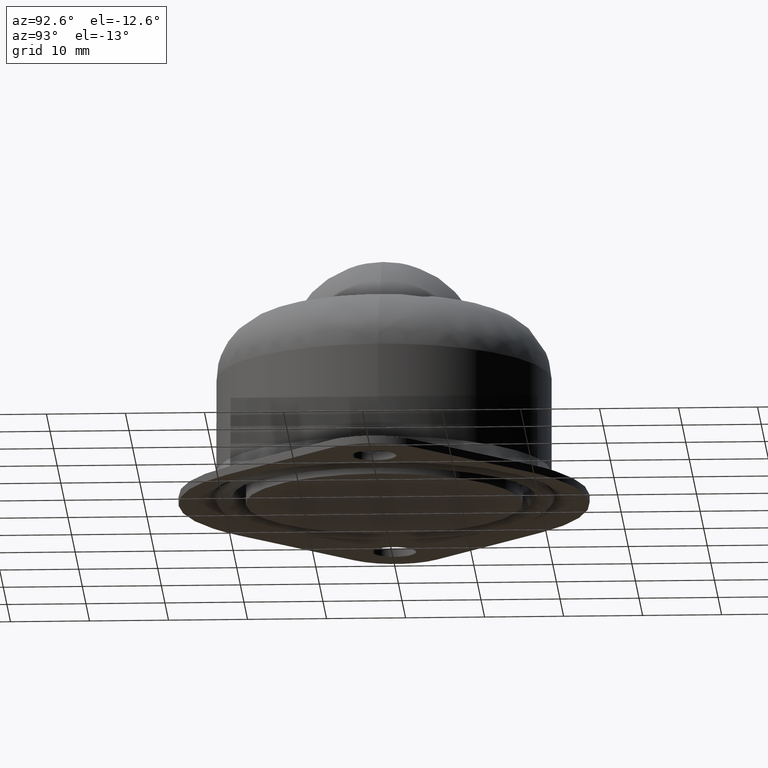
[diagram: clean part render]
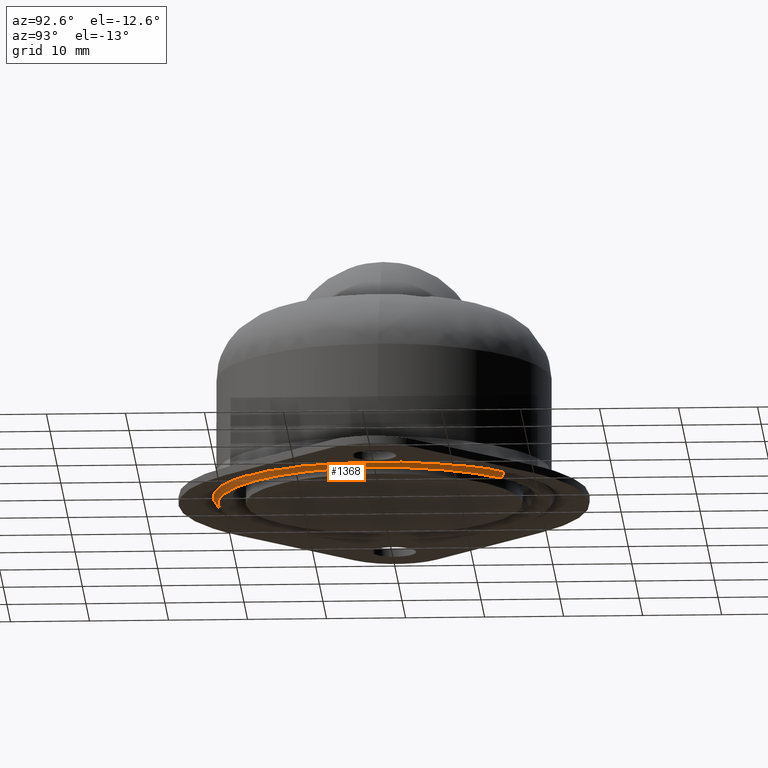
[diagram: same view with one face highlighted and labeled with its STEP entity id]
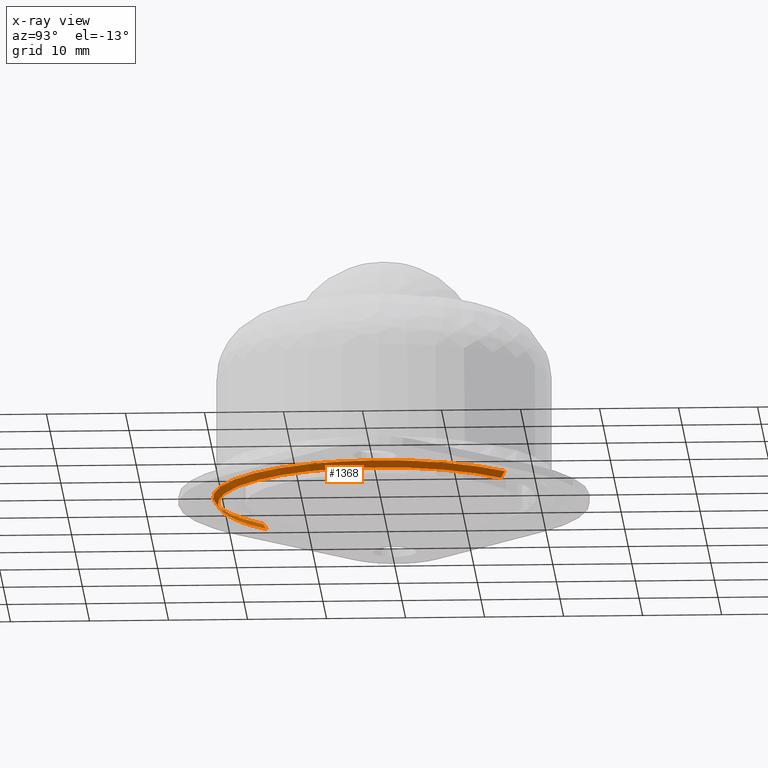
[diagram: x-ray of the same camera — body ghosted, the highlighted face saturated]
A machine part, auxiliary view. The second image highlights one B-rep face of the part: STEP entity #1368.
The next image is the same camera in x-ray: the body ghosted, the highlighted face saturated — about 0% of this face is hidden behind the body in this view.
In plain terms, the highlighted face is a freeform B-spline surface patch.
Its self-contained STEP definition (entity closure, byte-faithful):
#1148=CARTESIAN_POINT('',(14.187394579579150,15.482824312718821,0.000000114078437));
#1149=VERTEX_POINT('',#1148);
#1161=CARTESIAN_POINT('',(20.999999999737959,8.874474E-016,3.772895E-016));
#1162=VERTEX_POINT('',#1161);
#1163=CARTESIAN_POINT('',(14.187394579579150,15.482824312718821,0.000000114078437));
#1164=CARTESIAN_POINT('',(15.023112323677990,14.717139873014281,0.000000108436825));
#1165=CARTESIAN_POINT('',(16.570087545619380,13.049977765997840,0.000000096153068));
#1166=CARTESIAN_POINT('',(18.255893514074678,10.511128634295540,0.000000077446666));
#1167=CARTESIAN_POINT('',(19.520243988378230,7.894564588298852,0.000000058167655));
#1168=CARTESIAN_POINT('',(20.286804422398390,5.610793533116155,0.000000041340685));
#1169=CARTESIAN_POINT('',(20.856483282430560,2.901585665881518,0.000000021379068));
#1170=CARTESIAN_POINT('',(21.000081303114481,1.133446815982671,8.351309E-009));
#1171=CARTESIAN_POINT('',(20.999999999737959,8.874474E-016,3.772895E-016));
#1172=B_SPLINE_CURVE_WITH_KNOTS('',3,(#1163,#1164,#1165,#1166,#1167,#1168,#1169,#1170,#1171),.UNSPECIFIED.,.F.,.U.,(4,1,1,1,1,1,4),(0.000000010489494,3.400329113591523,6.800666315900704,9.112868980390493,12.105174034732761,14.009360749669620,17.409689852772669),.UNSPECIFIED.);
#1173=EDGE_CURVE('',#1149,#1162,#1172,.T.);
#1228=CARTESIAN_POINT('',(-0.000000939415835,-20.999999999999979,3.772895E-016));
#1229=VERTEX_POINT('',#1228);
#1230=CARTESIAN_POINT('',(20.999999999737959,8.874474E-016,3.772895E-016));
#1231=CARTESIAN_POINT('',(21.000082275789801,-1.159688507236779,3.772895E-016));
#1232=CARTESIAN_POINT('',(20.839477913026052,-3.092474164647127,3.772895E-016));
#1233=CARTESIAN_POINT('',(20.264513954700810,-5.652748570818164,3.772895E-016));
#1234=CARTESIAN_POINT('',(19.495111575165261,-7.934726424813935,3.772895E-016));
#1235=CARTESIAN_POINT('',(18.556408442125040,-9.919451099284023,3.772895E-016));
#1236=CARTESIAN_POINT('',(17.344765577711311,-11.899361179728221,3.772895E-016));
#1237=CARTESIAN_POINT('',(15.943668281102990,-13.752664210185319,3.772895E-016));
#1238=CARTESIAN_POINT('',(14.260058771090611,-15.478113818729280,3.772895E-016));
#1239=CARTESIAN_POINT('',(12.427400966306919,-16.972701969115871,3.772895E-016));
#1240=CARTESIAN_POINT('',(10.236730927620080,-18.417204233700961,3.772895E-016));
#1241=CARTESIAN_POINT('',(7.352902934704306,-19.781251844656040,3.772895E-016));
#1242=CARTESIAN_POINT('',(3.779677386550677,-20.769979737297579,3.772895E-016));
#1243=CARTESIAN_POINT('',(1.288553569583285,-21.000137542239688,3.772895E-016));
#1244=CARTESIAN_POINT('',(-0.000000939415835,-20.999999999999979,3.772895E-016));
#1245=B_SPLINE_CURVE_WITH_KNOTS('',3,(#1230,#1231,#1232,#1233,#1234,#1235,#1236,#1237,#1238,#1239,#1240,#1241,#1242,#1243,#1244),.UNSPECIFIED.,.F.,.U.,(4,1,1,1,1,1,1,1,1,1,1,1,4),(0.000000036760078,3.479054767147851,5.798456630922335,7.860130023572292,10.694941166173930,12.370057398345160,14.818285687690990,17.653074619405722,19.585876879921539,21.905279384400270,25.513209090944269,29.121139527746099,32.986775138493897),.UNSPECIFIED.);
#1246=EDGE_CURVE('',#1162,#1229,#1245,.T.);
#1248=CARTESIAN_POINT('',(-14.187394579578960,-15.482824312718609,0.000000114078338));
#1249=VERTEX_POINT('',#1248);
#1250=CARTESIAN_POINT('',(-0.000000939415835,-20.999999999999979,3.772895E-016));
#1251=CARTESIAN_POINT('',(-1.135831008361041,-21.000078498541370,9.133010E-009));
#1252=CARTESIAN_POINT('',(-3.204641451389826,-20.831741650799231,0.000000025767951));
#1253=CARTESIAN_POINT('',(-6.253452348021152,-20.121412205654050,0.000000050282903));
#1254=CARTESIAN_POINT('',(-9.021230017952597,-19.045119129382488,0.000000072538117));
#1255=CARTESIAN_POINT('',(-11.744995907418890,-17.500834596084410,0.000000094439440));
#1256=CARTESIAN_POINT('',(-13.379928258255459,-16.222827650459180,0.000000107585643));
#1257=CARTESIAN_POINT('',(-14.187394579578960,-15.482824312718609,0.000000114078338));
#1258=B_SPLINE_CURVE_WITH_KNOTS('',3,(#1250,#1251,#1252,#1253,#1254,#1255,#1256,#1257),.UNSPECIFIED.,.F.,.U.,(4,1,1,1,1,4),(9.154643E-009,3.407486405698920,6.206503355571016,9.370581205039130,12.291295668330619,15.577084551461811),.UNSPECIFIED.);
#1259=EDGE_CURVE('',#1229,#1249,#1258,.T.);
#1276=CARTESIAN_POINT('',(-14.176843413507020,-15.471309735488120,-0.019521720236075));
#1277=CARTESIAN_POINT('',(1.294466321981100,-29.648153148995142,-0.019521720236075));
#1278=CARTESIAN_POINT('',(15.471309735488120,-14.176843413507020,-0.019521720236075));
#1279=CARTESIAN_POINT('',(29.648153148995142,1.294466321981100,-0.019521720236075));
#1280=CARTESIAN_POINT('',(14.176843413507020,15.471309735488120,-0.019521720236075));
#1281=CARTESIAN_POINT('',(-14.620246936885010,-15.955199769954580,0.800878572685010));
#1282=CARTESIAN_POINT('',(1.334952833069577,-30.575446706839589,0.800878572685010));
#1283=CARTESIAN_POINT('',(15.955199769954580,-14.620246936885010,0.800878572685010));
#1284=CARTESIAN_POINT('',(30.575446706839589,1.334952833069577,0.800878572685010));
#1285=CARTESIAN_POINT('',(14.620246936885010,15.955199769954580,0.800878572685010));
#1293=(BOUNDED_SURFACE()B_SPLINE_SURFACE(2,1,((#1276,#1281),(#1277,#1282),(#1278,#1283),(#1279,#1284),(#1280,#1285)),.UNSPECIFIED.,.F.,.F.,.U.)B_SPLINE_SURFACE_WITH_KNOTS((3,2,3),(2,2),(0.0,35.855490492524382,71.710980985048764),(0.0,1.0),.UNSPECIFIED.)GEOMETRIC_REPRESENTATION_ITEM()RATIONAL_B_SPLINE_SURFACE(((1.0,1.0),(0.707106781186548,0.707106781186548),(1.0,1.0),(0.707106781186548,0.707106781186548),(1.0,1.0)))REPRESENTATION_ITEM('')SURFACE());
#1294=CARTESIAN_POINT('',(-14.328956769827050,-16.195939399356089,0.780868752140898));
#1295=VERTEX_POINT('',#1294);
#1296=CARTESIAN_POINT('',(-14.609432412109390,-15.943397787131920,0.780868870303698));
#1297=VERTEX_POINT('',#1296);
#1298=CARTESIAN_POINT('',(-14.328956769827050,-16.195939399356089,0.780868752140898));
#1299=CARTESIAN_POINT('',(-14.423180533300339,-16.112577200413380,0.780868791527437));
#1300=CARTESIAN_POINT('',(-14.516677794056010,-16.028391817777798,0.780868830917302));
#1301=CARTESIAN_POINT('',(-14.609432412109390,-15.943397787131920,0.780868870303698));
#1302=B_SPLINE_CURVE_WITH_KNOTS('',3,(#1298,#1299,#1300,#1301),.UNSPECIFIED.,.F.,.U.,(4,4),(1.434353E-012,0.377422434120528),.UNSPECIFIED.);
#1303=EDGE_CURVE('',#1295,#1297,#1302,.T.);
#1304=ORIENTED_EDGE('',*,*,#1303,.T.);
#1305=CARTESIAN_POINT('',(-14.187394579578960,-15.482824312718609,0.000000114078338));
#1306=CARTESIAN_POINT('',(-14.609432412109390,-15.943397787131920,0.780868870303698));
#1307=QUASI_UNIFORM_CURVE('',1,(#1305,#1306),.UNSPECIFIED.,.F.,.U.);
#1308=EDGE_CURVE('',#1249,#1297,#1307,.T.);
#1309=ORIENTED_EDGE('',*,*,#1308,.F.);
#1310=ORIENTED_EDGE('',*,*,#1259,.F.);
#1311=ORIENTED_EDGE('',*,*,#1246,.F.);
#1312=ORIENTED_EDGE('',*,*,#1173,.F.);
#1313=CARTESIAN_POINT('',(14.609432412109580,15.943397787132140,0.780868870303759));
#1314=VERTEX_POINT('',#1313);
#1315=CARTESIAN_POINT('',(14.187394579579150,15.482824312718821,0.000000114078437));
#1316=CARTESIAN_POINT('',(14.609432412109580,15.943397787132140,0.780868870303759));
#1317=QUASI_UNIFORM_CURVE('',1,(#1315,#1316),.UNSPECIFIED.,.F.,.U.);
#1318=EDGE_CURVE('',#1149,#1314,#1317,.T.);
#1319=ORIENTED_EDGE('',*,*,#1318,.T.);
#1320=CARTESIAN_POINT('',(21.624695047554400,0.0,0.780868809443032));
#1321=VERTEX_POINT('',#1320);
#1322=CARTESIAN_POINT('',(14.609432412109580,15.943397787132140,0.780868870303759));
#1323=CARTESIAN_POINT('',(15.229009313437739,15.375671543416280,0.780868868136583));
#1324=CARTESIAN_POINT('',(16.597406902671299,13.966613140125810,0.780868862757773));
#1325=CARTESIAN_POINT('',(18.263415635738021,11.704196135702720,0.780868854121461));
#1326=CARTESIAN_POINT('',(19.471223157380962,9.486403107818624,0.780868845655474));
#1327=CARTESIAN_POINT('',(20.366041281793329,7.379161486283304,0.780868837611505));
#1328=CARTESIAN_POINT('',(20.976557138332701,5.413716963755509,0.780868830108813));
#1329=CARTESIAN_POINT('',(21.490116858502049,2.847841873904161,0.780868820314093));
#1330=CARTESIAN_POINT('',(21.624765404446769,1.120476472543879,0.780868813720235));
#1331=CARTESIAN_POINT('',(21.624695047554400,0.0,0.780868809443032));
#1332=B_SPLINE_CURVE_WITH_KNOTS('',3,(#1322,#1323,#1324,#1325,#1326,#1327,#1328,#1329,#1330,#1331),.UNSPECIFIED.,.F.,.U.,(4,1,1,1,1,1,1,4),(9.829627E-009,2.521059172892194,5.882490110906581,8.403566436170150,10.084251885691110,12.745390155645669,14.566165321850759,17.927582549671602),.UNSPECIFIED.);
#1333=EDGE_CURVE('',#1314,#1321,#1332,.T.);
#1334=ORIENTED_EDGE('',*,*,#1333,.T.);
#1335=CARTESIAN_POINT('',(-0.000000927185500,-21.624695047554379,0.780868809443032));
#1336=VERTEX_POINT('',#1335);
#1337=CARTESIAN_POINT('',(21.624695047554400,0.0,0.780868809443032));
#1338=CARTESIAN_POINT('',(21.624886803174839,-1.415343560735628,0.780868809443031));
#1339=CARTESIAN_POINT('',(21.402413519414232,-3.670953026443915,0.780868809443032));
#1340=CARTESIAN_POINT('',(20.665768887095730,-6.500735133675379,0.780868809443032));
#1341=CARTESIAN_POINT('',(19.685969732552170,-9.112397886972129,0.780868809443034));
#1342=CARTESIAN_POINT('',(18.317599518213811,-11.653695190255361,0.780868809443028));
#1343=CARTESIAN_POINT('',(16.526675789683850,-14.022380442134571,0.780868809443050));
#1344=CARTESIAN_POINT('',(14.872249870259790,-15.749428023952150,0.780868809442998));
#1345=CARTESIAN_POINT('',(13.085743899313300,-17.271473263784529,0.780868809443055));
#1346=CARTESIAN_POINT('',(10.920893671287500,-18.737325066478618,0.780868809443019));
#1347=CARTESIAN_POINT('',(8.540918718558853,-19.926144928672109,0.780868809443036));
#1348=CARTESIAN_POINT('',(5.785673210653997,-20.902484633976279,0.780868809443028));
#1349=CARTESIAN_POINT('',(3.007580448128173,-21.490633703200661,0.780868809443039));
#1350=CARTESIAN_POINT('',(0.928801565218598,-21.624708017482249,0.780868809443029));
#1351=CARTESIAN_POINT('',(-0.000000927185500,-21.624695047554379,0.780868809443032));
#1352=B_SPLINE_CURVE_WITH_KNOTS('',3,(#1337,#1338,#1339,#1340,#1341,#1342,#1343,#1344,#1345,#1346,#1347,#1348,#1349,#1350,#1351),.UNSPECIFIED.,.F.,.U.,(4,1,1,1,1,1,1,1,1,1,1,1,4),(0.000000034502278,4.245988892204316,6.767071466723486,8.757388200741179,12.605331214787210,15.391796671388660,17.647456009665611,19.770441382702039,22.424213250240850,25.476034028308760,27.731733745626450,31.181626673920459,33.968045357255562),.UNSPECIFIED.);
#1353=EDGE_CURVE('',#1321,#1336,#1352,.T.);
#1354=ORIENTED_EDGE('',*,*,#1353,.T.);
#1355=CARTESIAN_POINT('',(-0.000000927185500,-21.624695047554379,0.780868809443032));
#1356=CARTESIAN_POINT('',(-0.938151060217037,-21.624728826500210,0.780868805691329));
#1357=CARTESIAN_POINT('',(-2.732858088218007,-21.507699699252740,0.780868798514214));
#1358=CARTESIAN_POINT('',(-5.782711736933478,-20.922670619458440,0.780868786317715));
#1359=CARTESIAN_POINT('',(-8.949435274668472,-19.804199925480951,0.780868773653845));
#1360=CARTESIAN_POINT('',(-11.946199062547061,-18.119531607588009,0.780868761669653));
#1361=CARTESIAN_POINT('',(-13.626337610709671,-16.817586888225929,0.780868754950704));
#1362=CARTESIAN_POINT('',(-14.328956769827050,-16.195939399356089,0.780868752140898));
#1363=B_SPLINE_CURVE_WITH_KNOTS('',3,(#1355,#1356,#1357,#1358,#1359,#1360,#1361,#1362),.UNSPECIFIED.,.F.,.U.,(4,1,1,1,1,4),(9.017098E-009,2.814449572993986,5.384171237189547,9.299919235575512,12.848588892487280,15.663038456470440),.UNSPECIFIED.);
#1364=EDGE_CURVE('',#1336,#1295,#1363,.T.);
#1365=ORIENTED_EDGE('',*,*,#1364,.T.);
#1366=EDGE_LOOP('',(#1304,#1309,#1310,#1311,#1312,#1319,#1334,#1354,#1365));
#1367=FACE_OUTER_BOUND('',#1366,.T.);
#1368=ADVANCED_FACE('',(#1367),#1293,.T.);